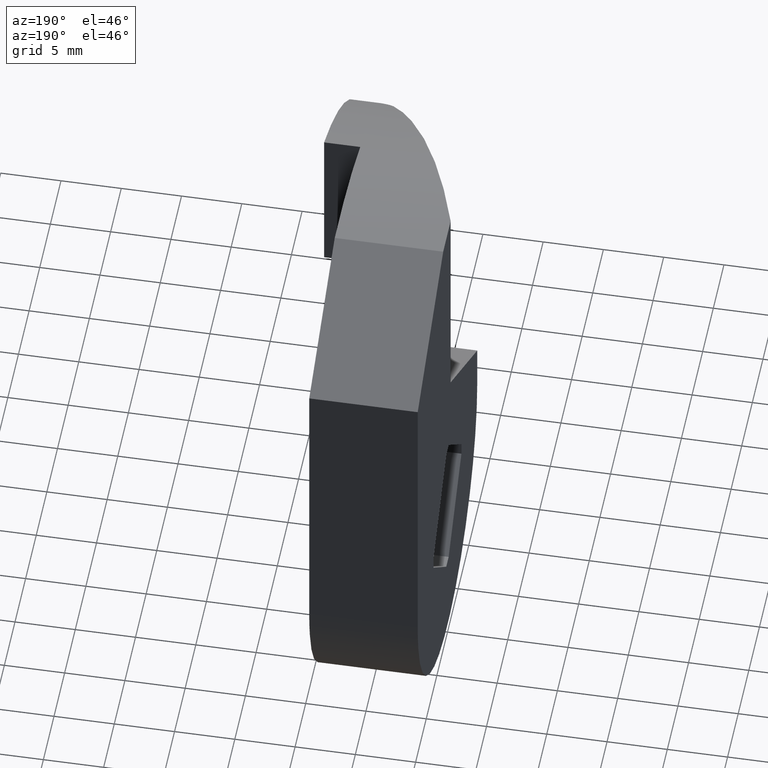
[diagram: clean part render]
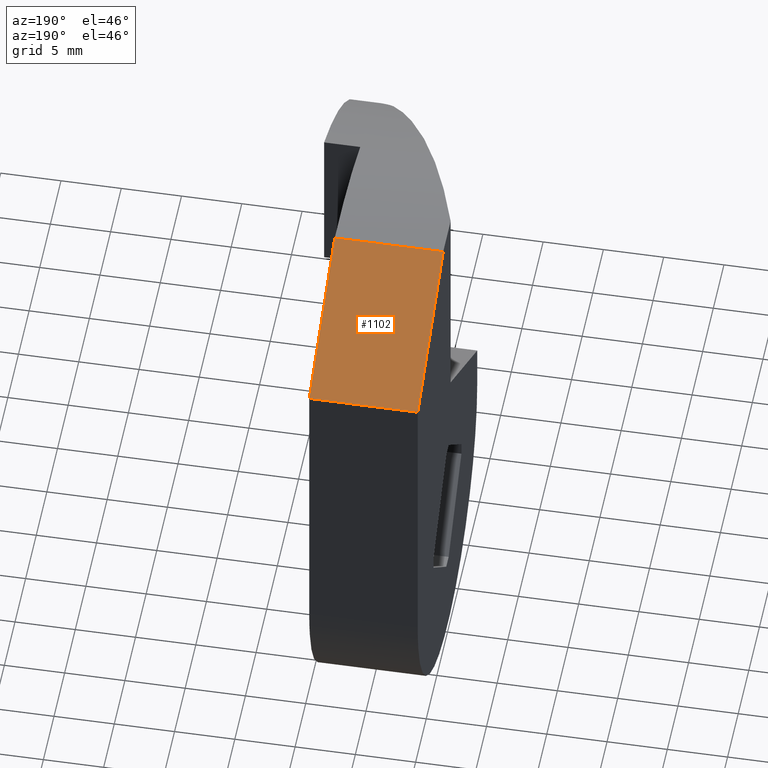
[diagram: same view with one face highlighted and labeled with its STEP entity id]
A machine part, auxiliary view. The second image highlights one B-rep face of the part: STEP entity #1102.
In plain terms, the highlighted face is a freeform B-spline surface patch.
Its self-contained STEP definition (entity closure, byte-faithful):
#902=CARTESIAN_POINT('',(1.110223E-013,2.000000000209915,31.937438845303401));
#903=VERTEX_POINT('',#902);
#917=CARTESIAN_POINT('',(1.110223E-013,13.999999999982441,25.300000000086751));
#918=VERTEX_POINT('',#917);
#919=CARTESIAN_POINT('',(1.110223E-013,2.000000000209915,31.937438845303401));
#920=CARTESIAN_POINT('',(1.110223E-013,13.999999999982441,25.300000000086751));
#921=QUASI_UNIFORM_CURVE('',1,(#919,#920),.UNSPECIFIED.,.F.,.U.);
#922=EDGE_CURVE('',#903,#918,#921,.T.);
#998=CARTESIAN_POINT('',(9.000000000000119,13.999999999982441,25.300000000086751));
#999=VERTEX_POINT('',#998);
#1005=CARTESIAN_POINT('',(9.000000000000119,2.000000000209915,31.937438845303401));
#1006=VERTEX_POINT('',#1005);
#1007=CARTESIAN_POINT('',(9.000000000000119,2.000000000209915,31.937438845303401));
#1008=CARTESIAN_POINT('',(9.000000000000119,13.999999999982441,25.300000000086751));
#1009=QUASI_UNIFORM_CURVE('',1,(#1007,#1008),.UNSPECIFIED.,.F.,.U.);
#1010=EDGE_CURVE('',#1006,#999,#1009,.T.);
#1077=CARTESIAN_POINT('',(9.000000000000119,13.999999999982441,25.300000000086751));
#1078=CARTESIAN_POINT('',(1.110223E-013,13.999999999982441,25.300000000086751));
#1079=QUASI_UNIFORM_CURVE('',1,(#1077,#1078),.UNSPECIFIED.,.F.,.U.);
#1080=EDGE_CURVE('',#999,#918,#1079,.T.);
#1087=CARTESIAN_POINT('',(-0.449549982556143,14.599400314654989,24.968459755710239));
#1088=CARTESIAN_POINT('',(-0.449549982556143,1.400599685537372,32.268979089679917));
#1089=CARTESIAN_POINT('',(9.449550223955185,14.599400314654989,24.968459755710239));
#1090=CARTESIAN_POINT('',(9.449550223955185,1.400599685537372,32.268979089679917));
#1091=B_SPLINE_SURFACE_WITH_KNOTS('',1,1,((#1087,#1089),(#1088,#1090)),.UNSPECIFIED.,.F.,.F.,.U.,(2,2),(2,2),(0.0,15.083299393463649),(0.0,9.899100206511330),.UNSPECIFIED.);
#1092=ORIENTED_EDGE('',*,*,#922,.F.);
#1093=CARTESIAN_POINT('',(9.000000000000119,2.000000000209915,31.937438845303401));
#1094=CARTESIAN_POINT('',(1.110223E-013,2.000000000209915,31.937438845303401));
#1095=QUASI_UNIFORM_CURVE('',1,(#1093,#1094),.UNSPECIFIED.,.F.,.U.);
#1096=EDGE_CURVE('',#1006,#903,#1095,.T.);
#1097=ORIENTED_EDGE('',*,*,#1096,.F.);
#1098=ORIENTED_EDGE('',*,*,#1010,.T.);
#1099=ORIENTED_EDGE('',*,*,#1080,.T.);
#1100=EDGE_LOOP('',(#1092,#1097,#1098,#1099));
#1101=FACE_OUTER_BOUND('',#1100,.T.);
#1102=ADVANCED_FACE('',(#1101),#1091,.T.);